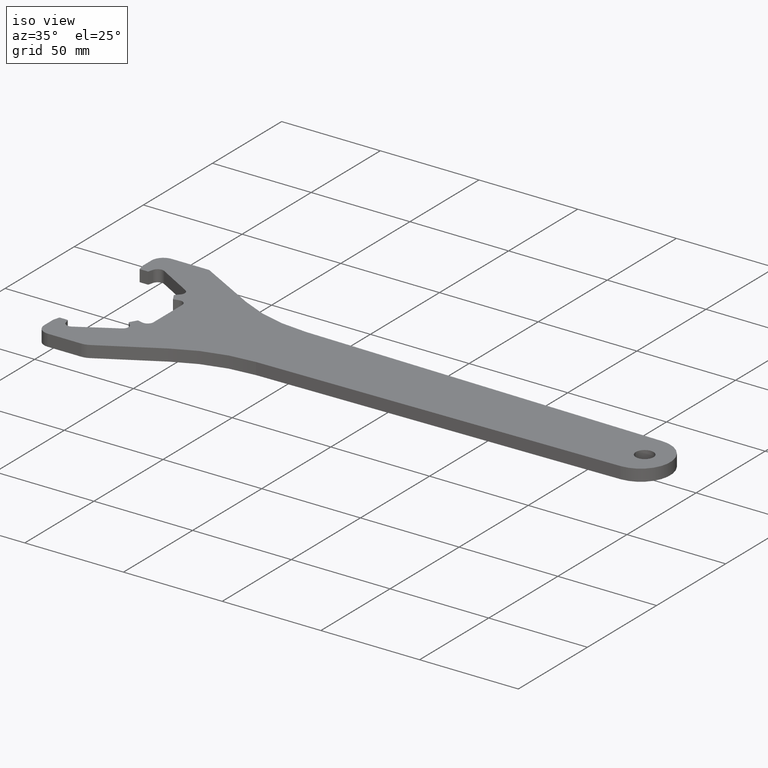
[diagram: clean part render]
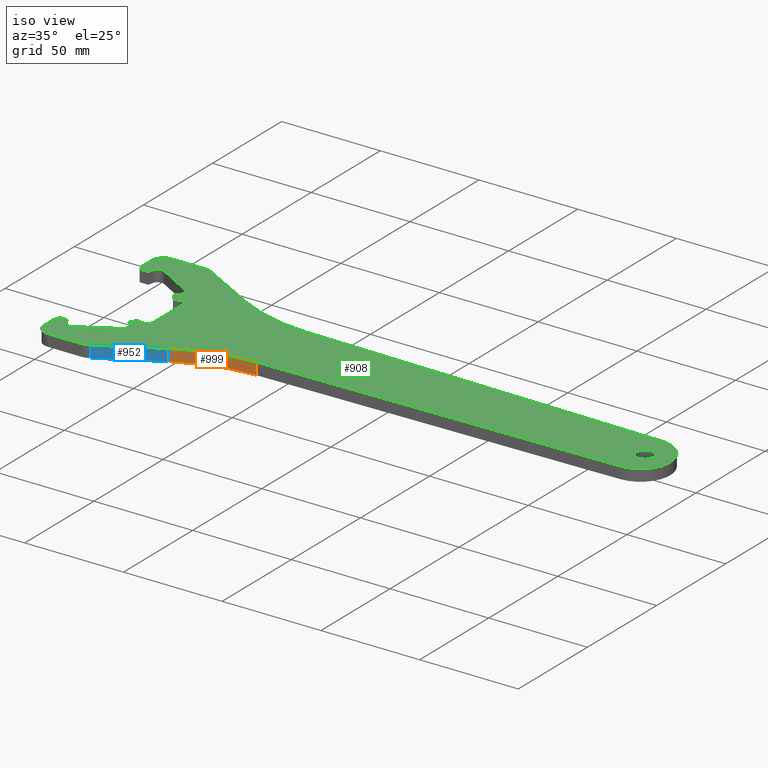
[diagram: same view with three faces highlighted in distinct colors, each labeled with its STEP entity id]
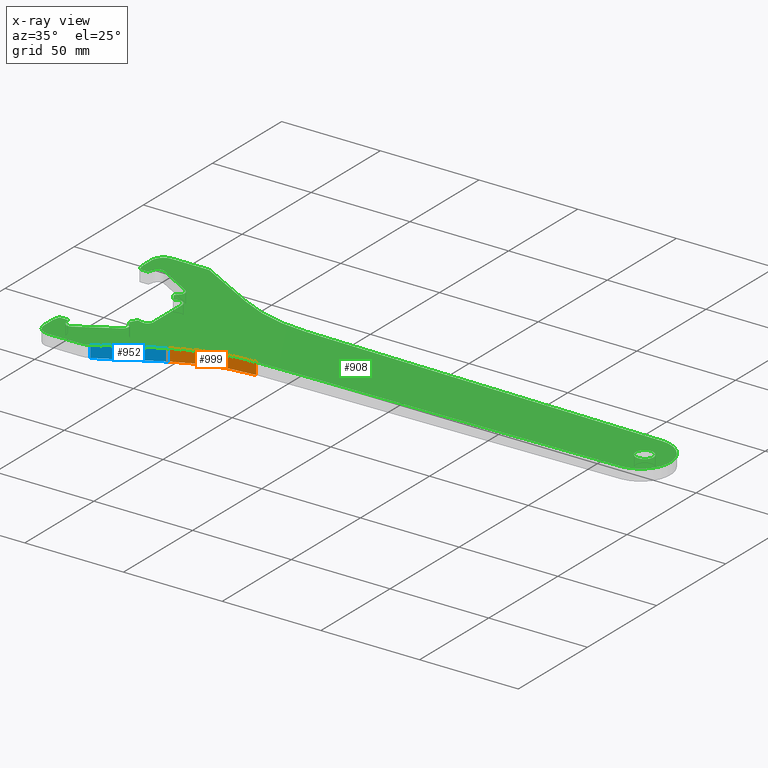
[diagram: x-ray of the same camera — body ghosted, the three highlighted faces saturated]
A machine part, iso view with three faces highlighted in distinct colors.
The next image is the same camera in x-ray (body ghosted, the three faces saturated) — at least one of them is partly hidden behind the body in this view.
Their STEP definitions:

[orange] entity #999 — the highlighted cylindrical surface (partial cylindrical patch) has radius 80 mm, axis along (0, 0, -1).
#2 = CIRCLE ( 'NONE', #1510, 80.00000000000000000 ) ;
#22 = ORIENTED_EDGE ( 'NONE', *, *, #880, .F. ) ;
#58 = VECTOR ( 'NONE', #622, 1000.000000000000000 ) ;
#61 = VECTOR ( 'NONE', #1288, 1000.000000000000000 ) ;
#151 = CARTESIAN_POINT ( 'NONE',  ( 52.35697660996074600, -28.02713574018244500, 3.000000000000000000 ) ) ;
#159 = ORIENTED_EDGE ( 'NONE', *, *, #931, .F. ) ;
#183 = VERTEX_POINT ( 'NONE', #1247 ) ;
#295 = DIRECTION ( 'NONE',  ( 0.0000000000000000000, 0.0000000000000000000, -1.000000000000000000 ) ) ;
#305 = VERTEX_POINT ( 'NONE', #1325 ) ;
#342 = CARTESIAN_POINT ( 'NONE',  ( 91.08415841000000100, -98.02860279499999800, 0.0000000000000000000 ) ) ;
#353 = ORIENTED_EDGE ( 'NONE', *, *, #1140, .T. ) ;
#401 = AXIS2_PLACEMENT_3D ( 'NONE', #1052, #295, #1187 ) ;
#433 = LINE ( 'NONE', #630, #61 ) ;
#463 = DIRECTION ( 'NONE',  ( -1.000000000000000000, 0.0000000000000000000, 0.0000000000000000000 ) ) ;
#622 = DIRECTION ( 'NONE',  ( 0.0000000000000000000, 0.0000000000000000000, -1.000000000000000000 ) ) ;
#623 = EDGE_LOOP ( 'NONE', ( #159, #1277, #353, #22 ) ) ;
#630 = CARTESIAN_POINT ( 'NONE',  ( 89.75082507700001600, -18.03971467699999900, 3.000000000000000000 ) ) ;
#669 = CARTESIAN_POINT ( 'NONE',  ( 52.35697662698923700, -28.02713573086294800, 0.0000000000000000000 ) ) ;
#696 = CYLINDRICAL_SURFACE ( 'NONE', #829, 80.00000000000000000 ) ;
#740 = FACE_OUTER_BOUND ( 'NONE', #623, .T. ) ;
#757 = LINE ( 'NONE', #151, #58 ) ;
#767 = EDGE_CURVE ( 'NONE', #1090, #1199, #757, .T. ) ;
#829 = AXIS2_PLACEMENT_3D ( 'NONE', #1572, #1440, #1316 ) ;
#880 = EDGE_CURVE ( 'NONE', #183, #305, #433, .T. ) ;
#931 = EDGE_CURVE ( 'NONE', #1090, #183, #1583, .T. ) ;
#999 = ADVANCED_FACE ( 'NONE', ( #740 ), #696, .F. ) ;
#1052 = CARTESIAN_POINT ( 'NONE',  ( 91.08415841000000100, -98.02860279499999800, 6.000000000000000000 ) ) ;
#1090 = VERTEX_POINT ( 'NONE', #1212 ) ;
#1140 = EDGE_CURVE ( 'NONE', #1199, #305, #2, .T. ) ;
#1187 = DIRECTION ( 'NONE',  ( -1.000000000000000000, 0.0000000000000000000, 0.0000000000000000000 ) ) ;
#1199 = VERTEX_POINT ( 'NONE', #669 ) ;
#1212 = CARTESIAN_POINT ( 'NONE',  ( 52.35697669664359200, -28.02713572117011200, 6.000000000000000000 ) ) ;
#1231 = DIRECTION ( 'NONE',  ( 0.0000000000000000000, 0.0000000000000000000, -1.000000000000000000 ) ) ;
#1247 = CARTESIAN_POINT ( 'NONE',  ( 89.75082508319594900, -18.03971466491087500, 6.000000000000000000 ) ) ;
#1277 = ORIENTED_EDGE ( 'NONE', *, *, #767, .T. ) ;
#1288 = DIRECTION ( 'NONE',  ( -0.0000000000000000000, -0.0000000000000000000, -1.000000000000000000 ) ) ;
#1316 = DIRECTION ( 'NONE',  ( -1.000000000000000000, 0.0000000000000000000, 0.0000000000000000000 ) ) ;
#1325 = CARTESIAN_POINT ( 'NONE',  ( 89.75082507693063900, -18.03971467700116800, 0.0000000000000000000 ) ) ;
#1440 = DIRECTION ( 'NONE',  ( 0.0000000000000000000, 0.0000000000000000000, -1.000000000000000000 ) ) ;
#1510 = AXIS2_PLACEMENT_3D ( 'NONE', #342, #1231, #463 ) ;
#1572 = CARTESIAN_POINT ( 'NONE',  ( 91.08415841000000100, -98.02860279499999800, 6.000000000000000000 ) ) ;
#1583 = CIRCLE ( 'NONE', #401, 80.00000000000000000 ) ;

[blue] entity #952 — the highlighted planar face has unit normal (0.4841, -0.875, 0).
#46 = CARTESIAN_POINT ( 'NONE',  ( 23.79065301100000000, -43.83099318299999700, 0.0000000000000000000 ) ) ;
#58 = VECTOR ( 'NONE', #622, 1000.000000000000000 ) ;
#72 = CARTESIAN_POINT ( 'NONE',  ( 23.79065300449104100, -43.83099318483032600, 6.000000000000000000 ) ) ;
#110 = VECTOR ( 'NONE', #1389, 1000.000000000000000 ) ;
#151 = CARTESIAN_POINT ( 'NONE',  ( 52.35697660996074600, -28.02713574018244500, 3.000000000000000000 ) ) ;
#189 = VECTOR ( 'NONE', #1269, 1000.000000000000200 ) ;
#198 = DIRECTION ( 'NONE',  ( 0.8750183392145486300, 0.4840897706399228100, 0.0000000000000000000 ) ) ;
#207 = LINE ( 'NONE', #1073, #1501 ) ;
#236 = LINE ( 'NONE', #614, #189 ) ;
#419 = PLANE ( 'NONE',  #637 ) ;
#523 = ORIENTED_EDGE ( 'NONE', *, *, #767, .F. ) ;
#591 = VERTEX_POINT ( 'NONE', #72 ) ;
#614 = CARTESIAN_POINT ( 'NONE',  ( 23.79065301100000000, -43.83099318299999700, 0.0000000000000000000 ) ) ;
#618 = DIRECTION ( 'NONE',  ( 0.4840897720758505800, -0.8750183384201448700, 0.0000000000000000000 ) ) ;
#622 = DIRECTION ( 'NONE',  ( 0.0000000000000000000, 0.0000000000000000000, -1.000000000000000000 ) ) ;
#637 = AXIS2_PLACEMENT_3D ( 'NONE', #46, #618, #1150 ) ;
#659 = ORIENTED_EDGE ( 'NONE', *, *, #731, .T. ) ;
#669 = CARTESIAN_POINT ( 'NONE',  ( 52.35697662698923700, -28.02713573086294800, 0.0000000000000000000 ) ) ;
#731 = EDGE_CURVE ( 'NONE', #591, #1630, #1117, .T. ) ;
#756 = CARTESIAN_POINT ( 'NONE',  ( 23.79065301100000000, -43.83099318299999700, 3.000000000000000000 ) ) ;
#757 = LINE ( 'NONE', #151, #58 ) ;
#767 = EDGE_CURVE ( 'NONE', #1090, #1199, #757, .T. ) ;
#836 = EDGE_CURVE ( 'NONE', #1630, #1199, #236, .T. ) ;
#860 = EDGE_LOOP ( 'NONE', ( #1312, #659, #1535, #523 ) ) ;
#952 = ADVANCED_FACE ( 'NONE', ( #1253 ), #419, .T. ) ;
#1010 = EDGE_CURVE ( 'NONE', #591, #1090, #207, .T. ) ;
#1073 = CARTESIAN_POINT ( 'NONE',  ( 23.79065304274000100, -43.83099316189905200, 6.000000000000000000 ) ) ;
#1075 = CARTESIAN_POINT ( 'NONE',  ( 23.79065301098477600, -43.83099318300841000, -1.084202172485504400E-016 ) ) ;
#1090 = VERTEX_POINT ( 'NONE', #1212 ) ;
#1117 = LINE ( 'NONE', #756, #110 ) ;
#1150 = DIRECTION ( 'NONE',  ( 0.8750183384201447600, 0.4840897720758505200, 0.0000000000000000000 ) ) ;
#1199 = VERTEX_POINT ( 'NONE', #669 ) ;
#1212 = CARTESIAN_POINT ( 'NONE',  ( 52.35697669664359200, -28.02713572117011200, 6.000000000000000000 ) ) ;
#1253 = FACE_OUTER_BOUND ( 'NONE', #860, .T. ) ;
#1269 = DIRECTION ( 'NONE',  ( 0.8750183384201448700, 0.4840897720758505200, 0.0000000000000000000 ) ) ;
#1312 = ORIENTED_EDGE ( 'NONE', *, *, #1010, .F. ) ;
#1389 = DIRECTION ( 'NONE',  ( -0.0000000000000000000, -0.0000000000000000000, -1.000000000000000000 ) ) ;
#1501 = VECTOR ( 'NONE', #198, 1000.000000000000100 ) ;
#1535 = ORIENTED_EDGE ( 'NONE', *, *, #836, .T. ) ;
#1630 = VERTEX_POINT ( 'NONE', #1075 ) ;

[green] entity #908 — the highlighted planar face has unit normal (0, 0, 1).
#6 = EDGE_CURVE ( 'NONE', #183, #1409, #1037, .T. ) ;
#8 = DIRECTION ( 'NONE',  ( -0.0000000000000000000, -0.0000000000000000000, 1.000000000000000000 ) ) ;
#11 = DIRECTION ( 'NONE',  ( -0.0000000000000000000, -0.0000000000000000000, 1.000000000000000000 ) ) ;
#27 = CARTESIAN_POINT ( 'NONE',  ( 52.35697671062000300, 28.02713574238144300, 6.000000000000000000 ) ) ;
#31 = VERTEX_POINT ( 'NONE', #1604 ) ;
#34 = AXIS2_PLACEMENT_3D ( 'NONE', #1428, #655, #1560 ) ;
#43 = AXIS2_PLACEMENT_3D ( 'NONE', #1571, #805, #56 ) ;
#45 = ORIENTED_EDGE ( 'NONE', *, *, #931, .T. ) ;
#53 = EDGE_CURVE ( 'NONE', #607, #1038, #1636, .T. ) ;
#56 = DIRECTION ( 'NONE',  ( -1.000000000000000000, 8.673617379884026000E-015, 0.0000000000000000000 ) ) ;
#62 = CARTESIAN_POINT ( 'NONE',  ( 2.150111759699997500, 28.99999999196561300, 6.000000000000000000 ) ) ;
#72 = CARTESIAN_POINT ( 'NONE',  ( 23.79065300449104100, -43.83099318483032600, 6.000000000000000000 ) ) ;
#73 = DIRECTION ( 'NONE',  ( -0.0000000000000000000, -0.0000000000000000000, 1.000000000000000000 ) ) ;
#76 = CARTESIAN_POINT ( 'NONE',  ( 25.29435772358513600, 22.92343197572925100, 6.000000000000000000 ) ) ;
#79 = ORIENTED_EDGE ( 'NONE', *, *, #1205, .T. ) ;
#80 = ORIENTED_EDGE ( 'NONE', *, *, #155, .T. ) ;
#81 = VERTEX_POINT ( 'NONE', #712 ) ;
#82 = LINE ( 'NONE', #446, #370 ) ;
#83 = VECTOR ( 'NONE', #1069, 999.9999999999998900 ) ;
#84 = CARTESIAN_POINT ( 'NONE',  ( -2.153400328100003100, 28.99999999196562000, 6.000000000000000000 ) ) ;
#85 = DIRECTION ( 'NONE',  ( 0.9659258263774709300, 0.2588190447725977100, 0.0000000000000000000 ) ) ;
#88 = LINE ( 'NONE', #1611, #1291 ) ;
#103 = ORIENTED_EDGE ( 'NONE', *, *, #868, .T. ) ;
#111 = VECTOR ( 'NONE', #903, 1000.000000000000000 ) ;
#117 = AXIS2_PLACEMENT_3D ( 'NONE', #1329, #568, #1459 ) ;
#133 = CARTESIAN_POINT ( 'NONE',  ( 24.19259956670551000, -16.09529459306513000, 6.000000000000000000 ) ) ;
#136 = ORIENTED_EDGE ( 'NONE', *, *, #1255, .T. ) ;
#148 = ORIENTED_EDGE ( 'NONE', *, *, #1436, .T. ) ;
#154 = CARTESIAN_POINT ( 'NONE',  ( -3.016635672999999200, 0.0000000000000000000, 6.000000000000000000 ) ) ;
#155 = EDGE_CURVE ( 'NONE', #780, #1144, #842, .T. ) ;
#158 = ORIENTED_EDGE ( 'NONE', *, *, #1387, .T. ) ;
#161 = CARTESIAN_POINT ( 'NONE',  ( 272.2333643259391900, -14.99791652477024000, 6.000000000000000000 ) ) ;
#162 = CARTESIAN_POINT ( 'NONE',  ( 24.53900972800000300, 16.29529459299999800, 6.000000000000000000 ) ) ;
#166 = VECTOR ( 'NONE', #1259, 1000.000000000000200 ) ;
#168 = CARTESIAN_POINT ( 'NONE',  ( 271.9833643269999500, 0.0000000000000000000, 6.000000000000000000 ) ) ;
#169 = AXIS2_PLACEMENT_3D ( 'NONE', #750, #8, #892 ) ;
#172 = DIRECTION ( 'NONE',  ( 0.0000000000000000000, 0.0000000000000000000, 1.000000000000000000 ) ) ;
#174 = VECTOR ( 'NONE', #180, 1000.000000000000200 ) ;
#176 = CARTESIAN_POINT ( 'NONE',  ( -2.230597930637838300, -29.30046065461322500, 6.000000000000000000 ) ) ;
#179 = EDGE_CURVE ( 'NONE', #1513, #1142, #504, .T. ) ;
#180 = DIRECTION ( 'NONE',  ( 0.5000000103813669900, -0.8660253977907534900, 0.0000000000000000000 ) ) ;
#183 = VERTEX_POINT ( 'NONE', #1247 ) ;
#185 = DIRECTION ( 'NONE',  ( 0.0000000000000000000, 0.0000000000000000000, -1.000000000000000000 ) ) ;
#188 = CIRCLE ( 'NONE', #34, 3.000000000000000900 ) ;
#196 = CARTESIAN_POINT ( 'NONE',  ( 28.72244947558000300, -13.31577162136946100, 6.000000000000000000 ) ) ;
#198 = DIRECTION ( 'NONE',  ( 0.8750183392145486300, 0.4840897706399228100, 0.0000000000000000000 ) ) ;
#199 = DIRECTION ( 'NONE',  ( -0.0000000000000000000, -0.0000000000000000000, 1.000000000000000000 ) ) ;
#200 = CARTESIAN_POINT ( 'NONE',  ( 26.48571828048000400, 12.71644130477575500, 6.000000000000000000 ) ) ;
#201 = CARTESIAN_POINT ( 'NONE',  ( 273.9833643297888000, 0.0000000000000000000, 5.999999999999998200 ) ) ;
#205 = VERTEX_POINT ( 'NONE', #76 ) ;
#207 = LINE ( 'NONE', #1073, #1501 ) ;
#208 = CARTESIAN_POINT ( 'NONE',  ( 25.89369838023853600, 18.18228110780623700, 6.000000000000000000 ) ) ;
#217 = VERTEX_POINT ( 'NONE', #1094 ) ;
#218 = ORIENTED_EDGE ( 'NONE', *, *, #379, .T. ) ;
#222 = CARTESIAN_POINT ( 'NONE',  ( 19.91793483553876200, -44.83084647499999400, 6.000000000000000000 ) ) ;
#225 = CARTESIAN_POINT ( 'NONE',  ( 23.79435772700000500, 20.32535578000000200, 6.000000000000000000 ) ) ;
#228 = VECTOR ( 'NONE', #1243, 1000.000000000000000 ) ;
#230 = VERTEX_POINT ( 'NONE', #826 ) ;
#231 = VECTOR ( 'NONE', #315, 1000.000000000000000 ) ;
#238 = CARTESIAN_POINT ( 'NONE',  ( 273.9833643297888000, 0.0000000000000000000, 5.999999999999998200 ) ) ;
#243 = ORIENTED_EDGE ( 'NONE', *, *, #708, .T. ) ;
#247 = EDGE_CURVE ( 'NONE', #1252, #1513, #471, .T. ) ;
#265 = LINE ( 'NONE', #1240, #1266 ) ;
#266 = ORIENTED_EDGE ( 'NONE', *, *, #982, .F. ) ;
#273 = EDGE_CURVE ( 'NONE', #1142, #571, #1061, .T. ) ;
#276 = ORIENTED_EDGE ( 'NONE', *, *, #939, .T. ) ;
#278 = CARTESIAN_POINT ( 'NONE',  ( 26.38219063399999700, -13.10281161700000000, 6.000000000000000000 ) ) ;
#285 = VECTOR ( 'NONE', #768, 1000.000000000000000 ) ;
#287 = DIRECTION ( 'NONE',  ( -1.000000000000000000, 0.0000000000000000000, 0.0000000000000000000 ) ) ;
#288 = DIRECTION ( 'NONE',  ( -1.000000000000000000, 0.0000000000000000000, 0.0000000000000000000 ) ) ;
#295 = DIRECTION ( 'NONE',  ( 0.0000000000000000000, 0.0000000000000000000, -1.000000000000000000 ) ) ;
#297 = CARTESIAN_POINT ( 'NONE',  ( 24.53900972800000300, -16.29529459299999800, 6.000000000000000000 ) ) ;
#315 = DIRECTION ( 'NONE',  ( -0.0000000000000000000, -1.000000000000000000, -0.0000000000000000000 ) ) ;
#316 = CIRCLE ( 'NONE', #1393, 3.000000000000000900 ) ;
#318 = DIRECTION ( 'NONE',  ( 1.000000000000000000, 0.0000000000000000000, 0.0000000000000000000 ) ) ;
#320 = CARTESIAN_POINT ( 'NONE',  ( 24.53900972800000300, 16.29529459299999800, 6.000000000000000000 ) ) ;
#323 = CARTESIAN_POINT ( 'NONE',  ( 32.49890655805000300, 10.41799413500000100, 6.000000000000000000 ) ) ;
#327 = CARTESIAN_POINT ( 'NONE',  ( 269.4833643297678200, 5.510910596188847800E-016, 5.999999999999998200 ) ) ;
#336 = ORIENTED_EDGE ( 'NONE', *, *, #682, .T. ) ;
#344 = DIRECTION ( 'NONE',  ( -1.000000000000000000, 0.0000000000000000000, 0.0000000000000000000 ) ) ;
#345 = CARTESIAN_POINT ( 'NONE',  ( 32.49890649610000500, 0.0000000000000000000, 6.000000000000000000 ) ) ;
#350 = LINE ( 'NONE', #200, #980 ) ;
#351 = VERTEX_POINT ( 'NONE', #1216 ) ;
#354 = ORIENTED_EDGE ( 'NONE', *, *, #1129, .T. ) ;
#356 = DIRECTION ( 'NONE',  ( 1.000000000000000000, 0.0000000000000000000, 0.0000000000000000000 ) ) ;
#358 = EDGE_LOOP ( 'NONE', ( #148, #218, #354, #1377, #158, #136, #79, #426, #1062, #1369, #276, #384, #904, #336, #1354, #866, #610, #1520, #747, #1424, #1469, #1179, #499, #103, #582, #862, #1238, #266, #1383, #542, #1029, #1635, #1366, #450, #770, #1164, #601, #845, #80, #243, #1016, #45, #1223 ) ) ;
#359 = CIRCLE ( 'NONE', #578, 2.999999999999999100 ) ;
#369 = EDGE_LOOP ( 'NONE', ( #489, #702 ) ) ;
#370 = VECTOR ( 'NONE', #823, 1000.000000000000200 ) ;
#379 = EDGE_CURVE ( 'NONE', #989, #1505, #494, .T. ) ;
#384 = ORIENTED_EDGE ( 'NONE', *, *, #1123, .T. ) ;
#385 = VERTEX_POINT ( 'NONE', #1374 ) ;
#394 = CARTESIAN_POINT ( 'NONE',  ( 2.983364326999999900, -44.83084647499999400, 6.000000000000000000 ) ) ;
#396 = DIRECTION ( 'NONE',  ( -1.000000000000000000, 1.301042606982602000E-014, 0.0000000000000000000 ) ) ;
#401 = AXIS2_PLACEMENT_3D ( 'NONE', #1052, #295, #1187 ) ;
#412 = DIRECTION ( 'NONE',  ( -0.8660254019696164200, -0.5000000031433642400, 0.0000000000000000000 ) ) ;
#413 = VERTEX_POINT ( 'NONE', #133 ) ;
#417 = VERTEX_POINT ( 'NONE', #501 ) ;
#420 = DIRECTION ( 'NONE',  ( -1.000000000000000000, -8.673617379884087500E-015, 0.0000000000000000000 ) ) ;
#426 = ORIENTED_EDGE ( 'NONE', *, *, #667, .T. ) ;
#427 = CIRCLE ( 'NONE', #1466, 6.000000000000000000 ) ;
#434 = CARTESIAN_POINT ( 'NONE',  ( 23.79435772700000500, -20.32535578000000200, 6.000000000000000000 ) ) ;
#437 = CARTESIAN_POINT ( 'NONE',  ( 2.828881617458831600, 31.53320359806258800, 6.000000000000000000 ) ) ;
#439 = CARTESIAN_POINT ( 'NONE',  ( 2.150111818400002300, 28.99999998928748500, 6.000000000000000000 ) ) ;
#445 = DIRECTION ( 'NONE',  ( -1.000000000000000000, 8.673617379884087500E-015, 0.0000000000000000000 ) ) ;
#446 = CARTESIAN_POINT ( 'NONE',  ( -2.230597965339999000, -29.30046062612419500, 6.000000000000000000 ) ) ;
#450 = ORIENTED_EDGE ( 'NONE', *, *, #769, .T. ) ;
#457 = CIRCLE ( 'NONE', #1286, 0.4000000000000004100 ) ;
#458 = CARTESIAN_POINT ( 'NONE',  ( 91.08415841000000100, 98.02860279499999800, 6.000000000000000000 ) ) ;
#466 = DIRECTION ( 'NONE',  ( -0.0000000000000000000, -1.000000000000000000, -0.0000000000000000000 ) ) ;
#470 = DIRECTION ( 'NONE',  ( 1.000000000000000000, 0.0000000000000000000, 0.0000000000000000000 ) ) ;
#471 = LINE ( 'NONE', #345, #1481 ) ;
#472 = VERTEX_POINT ( 'NONE', #1141 ) ;
#481 = EDGE_CURVE ( 'NONE', #1328, #1498, #457, .T. ) ;
#485 = VERTEX_POINT ( 'NONE', #1385 ) ;
#486 = EDGE_CURVE ( 'NONE', #729, #81, #1418, .T. ) ;
#489 = ORIENTED_EDGE ( 'NONE', *, *, #525, .F. ) ;
#492 = AXIS2_PLACEMENT_3D ( 'NONE', #278, #1163, #396 ) ;
#493 = VECTOR ( 'NONE', #1430, 1000.000000000000000 ) ;
#494 = LINE ( 'NONE', #1121, #166 ) ;
#498 = LINE ( 'NONE', #788, #174 ) ;
#499 = ORIENTED_EDGE ( 'NONE', *, *, #273, .T. ) ;
#501 = CARTESIAN_POINT ( 'NONE',  ( 7.226659058118351600, 33.35482270770552300, 6.000000000000000000 ) ) ;
#504 = CIRCLE ( 'NONE', #117, 2.999999999999999100 ) ;
#510 = VECTOR ( 'NONE', #784, 1000.000000000000100 ) ;
#524 = CIRCLE ( 'NONE', #973, 0.4000000000000010200 ) ;
#525 = EDGE_CURVE ( 'NONE', #1038, #607, #1046, .T. ) ;
#540 = CARTESIAN_POINT ( 'NONE',  ( 2.229551196909103500, -29.29647237593651400, 6.000000000000000000 ) ) ;
#542 = ORIENTED_EDGE ( 'NONE', *, *, #955, .T. ) ;
#555 = DIRECTION ( 'NONE',  ( -1.000000000000000000, 0.0000000000000000000, 0.0000000000000000000 ) ) ;
#558 = DIRECTION ( 'NONE',  ( -0.0000000000000000000, -0.0000000000000000000, 1.000000000000000000 ) ) ;
#565 = LINE ( 'NONE', #785, #1214 ) ;
#568 = DIRECTION ( 'NONE',  ( 0.0000000000000000000, 0.0000000000000000000, -1.000000000000000000 ) ) ;
#571 = VERTEX_POINT ( 'NONE', #816 ) ;
#573 = DIRECTION ( 'NONE',  ( -1.000000000000000000, 0.0000000000000000000, 0.0000000000000000000 ) ) ;
#578 = AXIS2_PLACEMENT_3D ( 'NONE', #225, #1103, #344 ) ;
#581 = LINE ( 'NONE', #1076, #231 ) ;
#582 = ORIENTED_EDGE ( 'NONE', *, *, #1489, .F. ) ;
#587 = VECTOR ( 'NONE', #1174, 1000.000000000000100 ) ;
#591 = VERTEX_POINT ( 'NONE', #72 ) ;
#597 = AXIS2_PLACEMENT_3D ( 'NONE', #238, #1116, #356 ) ;
#601 = ORIENTED_EDGE ( 'NONE', *, *, #871, .T. ) ;
#602 = EDGE_CURVE ( 'NONE', #716, #1101, #613, .T. ) ;
#603 = LINE ( 'NONE', #27, #285 ) ;
#604 = VERTEX_POINT ( 'NONE', #681 ) ;
#605 = EDGE_CURVE ( 'NONE', #351, #729, #926, .T. ) ;
#607 = VERTEX_POINT ( 'NONE', #327 ) ;
#610 = ORIENTED_EDGE ( 'NONE', *, *, #1516, .T. ) ;
#613 = CIRCLE ( 'NONE', #670, 0.3999999999999975800 ) ;
#634 = CARTESIAN_POINT ( 'NONE',  ( 2.828881687640000900, -31.53320364098978600, 6.000000000000000000 ) ) ;
#638 = DIRECTION ( 'NONE',  ( 0.0000000000000000000, 0.0000000000000000000, -1.000000000000000000 ) ) ;
#640 = CARTESIAN_POINT ( 'NONE',  ( -3.016635672999999200, -44.83084647499999400, 6.000000000000000000 ) ) ;
#655 = DIRECTION ( 'NONE',  ( 0.0000000000000000000, 0.0000000000000000000, -1.000000000000000000 ) ) ;
#667 = EDGE_CURVE ( 'NONE', #1582, #1130, #890, .T. ) ;
#670 = AXIS2_PLACEMENT_3D ( 'NONE', #162, #1033, #287 ) ;
#681 = CARTESIAN_POINT ( 'NONE',  ( 2.983364327615311200, 44.83084647499999400, 6.000000000000000000 ) ) ;
#682 = EDGE_CURVE ( 'NONE', #1050, #485, #1562, .T. ) ;
#687 = DIRECTION ( 'NONE',  ( -0.0000000000000000000, -0.0000000000000000000, 1.000000000000000000 ) ) ;
#689 = CARTESIAN_POINT ( 'NONE',  ( 7.226659136600002100, 33.35482268840559100, 6.000000000000000000 ) ) ;
#690 = VECTOR ( 'NONE', #1402, 1000.000000000000200 ) ;
#702 = ORIENTED_EDGE ( 'NONE', *, *, #53, .F. ) ;
#707 = EDGE_CURVE ( 'NONE', #1071, #351, #188, .T. ) ;
#708 = EDGE_CURVE ( 'NONE', #1144, #591, #1523, .T. ) ;
#712 = CARTESIAN_POINT ( 'NONE',  ( 1.843180906000000600, -28.99999999464374100, 6.000000000000000000 ) ) ;
#713 = AXIS2_PLACEMENT_3D ( 'NONE', #458, #1340, #573 ) ;
#716 = VERTEX_POINT ( 'NONE', #790 ) ;
#729 = VERTEX_POINT ( 'NONE', #540 ) ;
#739 = VECTOR ( 'NONE', #1581, 1000.000000000000000 ) ;
#747 = ORIENTED_EDGE ( 'NONE', *, *, #1631, .T. ) ;
#750 = CARTESIAN_POINT ( 'NONE',  ( 19.91793483400000000, -36.83084647499999400, 6.000000000000000000 ) ) ;
#752 = CARTESIAN_POINT ( 'NONE',  ( -1.843180906000000400, -29.39999999999999900, 6.000000000000000000 ) ) ;
#759 = LINE ( 'NONE', #154, #111 ) ;
#768 = DIRECTION ( 'NONE',  ( -0.8750183393551158600, 0.4840897703858401100, 0.0000000000000000000 ) ) ;
#769 = EDGE_CURVE ( 'NONE', #81, #1328, #1610, .T. ) ;
#770 = ORIENTED_EDGE ( 'NONE', *, *, #481, .T. ) ;
#775 = CIRCLE ( 'NONE', #1035, 6.000000000000000000 ) ;
#780 = VERTEX_POINT ( 'NONE', #394 ) ;
#781 = CARTESIAN_POINT ( 'NONE',  ( 25.11419001950000100, -14.49905310500000000, 6.000000000000000000 ) ) ;
#784 = DIRECTION ( 'NONE',  ( -0.7143582298892988700, -0.6997801936247035600, 0.0000000000000000000 ) ) ;
#785 = CARTESIAN_POINT ( 'NONE',  ( 25.29435773036000200, -22.92343195422212400, 6.000000000000000000 ) ) ;
#788 = CARTESIAN_POINT ( 'NONE',  ( 24.19259957818000500, 16.09529459323754000, 6.000000000000000000 ) ) ;
#790 = CARTESIAN_POINT ( 'NONE',  ( 24.13900972800000800, 16.29529459299999800, 6.000000000000000000 ) ) ;
#791 = CARTESIAN_POINT ( 'NONE',  ( 25.07639801900000300, -17.38165952649999800, 6.000000000000000000 ) ) ;
#794 = VERTEX_POINT ( 'NONE', #1507 ) ;
#798 = CARTESIAN_POINT ( 'NONE',  ( -3.016635673000000600, -32.35979765923500700, 6.000000000000000000 ) ) ;
#802 = CIRCLE ( 'NONE', #492, 0.4000000000000010200 ) ;
#805 = DIRECTION ( 'NONE',  ( -0.0000000000000000000, -0.0000000000000000000, 1.000000000000000000 ) ) ;
#816 = CARTESIAN_POINT ( 'NONE',  ( 26.48571825071954700, -12.71644129146587200, 6.000000000000000000 ) ) ;
#820 = CARTESIAN_POINT ( 'NONE',  ( 26.38219063399999700, 13.10281161700000000, 6.000000000000000000 ) ) ;
#823 = DIRECTION ( 'NONE',  ( -0.2488483265271458900, -0.9685424670011320000, 0.0000000000000000000 ) ) ;
#826 = CARTESIAN_POINT ( 'NONE',  ( -3.016635672999999700, 38.83084647499998700, 6.000000000000000000 ) ) ;
#830 = CARTESIAN_POINT ( 'NONE',  ( 28.72244948395049500, 13.31577161864036700, 6.000000000000000000 ) ) ;
#840 = VERTEX_POINT ( 'NONE', #1143 ) ;
#842 = LINE ( 'NONE', #857, #228 ) ;
#845 = ORIENTED_EDGE ( 'NONE', *, *, #1057, .T. ) ;
#857 = CARTESIAN_POINT ( 'NONE',  ( 142.8533643269999800, -44.83084647499999400, 6.000000000000000000 ) ) ;
#862 = ORIENTED_EDGE ( 'NONE', *, *, #966, .T. ) ;
#866 = ORIENTED_EDGE ( 'NONE', *, *, #602, .T. ) ;
#868 = EDGE_CURVE ( 'NONE', #571, #385, #802, .T. ) ;
#869 = CIRCLE ( 'NONE', #1313, 0.3999999999999975800 ) ;
#871 = EDGE_CURVE ( 'NONE', #1569, #1039, #759, .T. ) ;
#875 = LINE ( 'NONE', #781, #1508 ) ;
#876 = VERTEX_POINT ( 'NONE', #1536 ) ;
#885 = AXIS2_PLACEMENT_3D ( 'NONE', #1324, #558, #1449 ) ;
#890 = LINE ( 'NONE', #1301, #1195 ) ;
#892 = DIRECTION ( 'NONE',  ( -1.000000000000000000, -1.734723475976807900E-015, 0.0000000000000000000 ) ) ;
#895 = DIRECTION ( 'NONE',  ( -1.000000000000000000, -1.734723475976805200E-014, 0.0000000000000000000 ) ) ;
#903 = DIRECTION ( 'NONE',  ( -0.0000000000000000000, -1.000000000000000000, -0.0000000000000000000 ) ) ;
#904 = ORIENTED_EDGE ( 'NONE', *, *, #1321, .T. ) ;
#908 = ADVANCED_FACE ( 'NONE', ( #1628, #1289 ), #916, .T. ) ;
#909 = CARTESIAN_POINT ( 'NONE',  ( 25.89369846720001100, 18.18228113917791300, 6.000000000000000000 ) ) ;
#911 = CIRCLE ( 'NONE', #1014, 14.99999999999995700 ) ;
#916 = PLANE ( 'NONE',  #1493 ) ;
#925 = AXIS2_PLACEMENT_3D ( 'NONE', #1413, #638, #1544 ) ;
#926 = LINE ( 'NONE', #634, #587 ) ;
#928 = CARTESIAN_POINT ( 'NONE',  ( 5.726659042000000500, 30.75674647899999700, 6.000000000000000000 ) ) ;
#930 = VERTEX_POINT ( 'NONE', #1303 ) ;
#931 = EDGE_CURVE ( 'NONE', #1090, #183, #1583, .T. ) ;
#939 = EDGE_CURVE ( 'NONE', #1013, #417, #316, .T. ) ;
#940 = CARTESIAN_POINT ( 'NONE',  ( 2.983364327000000300, -38.83084647499998700, 6.000000000000000000 ) ) ;
#948 = CARTESIAN_POINT ( 'NONE',  ( 24.19259957237844500, 16.09529459348519600, 6.000000000000000000 ) ) ;
#954 = DIRECTION ( 'NONE',  ( -1.000000000000000000, 0.0000000000000000000, 0.0000000000000000000 ) ) ;
#955 = EDGE_CURVE ( 'NONE', #472, #1071, #565, .T. ) ;
#966 = EDGE_CURVE ( 'NONE', #413, #876, #869, .T. ) ;
#973 = AXIS2_PLACEMENT_3D ( 'NONE', #820, #73, #954 ) ;
#980 = VECTOR ( 'NONE', #85, 1000.000000000000000 ) ;
#982 = EDGE_CURVE ( 'NONE', #217, #31, #1502, .T. ) ;
#989 = VERTEX_POINT ( 'NONE', #1310 ) ;
#1010 = EDGE_CURVE ( 'NONE', #591, #1090, #207, .T. ) ;
#1013 = VERTEX_POINT ( 'NONE', #437 ) ;
#1014 = AXIS2_PLACEMENT_3D ( 'NONE', #168, #1041, #288 ) ;
#1016 = ORIENTED_EDGE ( 'NONE', *, *, #1010, .T. ) ;
#1024 = EDGE_CURVE ( 'NONE', #485, #716, #1167, .T. ) ;
#1029 = ORIENTED_EDGE ( 'NONE', *, *, #707, .T. ) ;
#1031 = EDGE_CURVE ( 'NONE', #794, #930, #524, .T. ) ;
#1033 = DIRECTION ( 'NONE',  ( -0.0000000000000000000, -0.0000000000000000000, 1.000000000000000000 ) ) ;
#1035 = AXIS2_PLACEMENT_3D ( 'NONE', #940, #199, #1074 ) ;
#1037 = LINE ( 'NONE', #1285, #690 ) ;
#1038 = VERTEX_POINT ( 'NONE', #1080 ) ;
#1039 = VERTEX_POINT ( 'NONE', #1326 ) ;
#1041 = DIRECTION ( 'NONE',  ( -0.0000000000000000000, -0.0000000000000000000, 1.000000000000000000 ) ) ;
#1044 = DIRECTION ( 'NONE',  ( 1.000000000000000000, 0.0000000000000000000, 0.0000000000000000000 ) ) ;
#1046 = CIRCLE ( 'NONE', #1607, 4.500000000020987700 ) ;
#1050 = VERTEX_POINT ( 'NONE', #208 ) ;
#1052 = CARTESIAN_POINT ( 'NONE',  ( 91.08415841000000100, -98.02860279499999800, 6.000000000000000000 ) ) ;
#1053 = CIRCLE ( 'NONE', #1270, 2.999999999999999100 ) ;
#1055 = DIRECTION ( 'NONE',  ( -1.000000000000000000, 0.0000000000000000000, 0.0000000000000000000 ) ) ;
#1057 = EDGE_CURVE ( 'NONE', #1039, #780, #775, .T. ) ;
#1059 = EDGE_CURVE ( 'NONE', #876, #31, #1412, .T. ) ;
#1061 = LINE ( 'NONE', #196, #83 ) ;
#1062 = ORIENTED_EDGE ( 'NONE', *, *, #1161, .T. ) ;
#1069 = DIRECTION ( 'NONE',  ( -0.9659258263774702600, 0.2588190447726004800, 0.0000000000000000000 ) ) ;
#1071 = VERTEX_POINT ( 'NONE', #1086 ) ;
#1072 = EDGE_CURVE ( 'NONE', #1112, #1013, #1093, .T. ) ;
#1073 = CARTESIAN_POINT ( 'NONE',  ( 23.79065304274000100, -43.83099316189905200, 6.000000000000000000 ) ) ;
#1074 = DIRECTION ( 'NONE',  ( -1.000000000000000000, 0.0000000000000000000, 0.0000000000000000000 ) ) ;
#1076 = CARTESIAN_POINT ( 'NONE',  ( -3.016635672999999200, 0.0000000000000000000, 6.000000000000000000 ) ) ;
#1078 = DIRECTION ( 'NONE',  ( 0.0000000000000000000, 0.0000000000000000000, 1.000000000000000000 ) ) ;
#1080 = CARTESIAN_POINT ( 'NONE',  ( 278.4833643298097700, 0.0000000000000000000, 5.999999999999998200 ) ) ;
#1086 = CARTESIAN_POINT ( 'NONE',  ( 7.226659057840865200, -33.35482270754239000, 6.000000000000000000 ) ) ;
#1090 = VERTEX_POINT ( 'NONE', #1212 ) ;
#1093 = LINE ( 'NONE', #439, #739 ) ;
#1094 = CARTESIAN_POINT ( 'NONE',  ( 25.89369839926561300, -18.18228118026019000, 6.000000000000000000 ) ) ;
#1097 = CARTESIAN_POINT ( 'NONE',  ( 21.98336431080002400, 44.83084647499999400, 6.000000000000000000 ) ) ;
#1101 = VERTEX_POINT ( 'NONE', #948 ) ;
#1103 = DIRECTION ( 'NONE',  ( 0.0000000000000000000, 0.0000000000000000000, -1.000000000000000000 ) ) ;
#1112 = VERTEX_POINT ( 'NONE', #62 ) ;
#1113 = EDGE_CURVE ( 'NONE', #1498, #1569, #82, .T. ) ;
#1116 = DIRECTION ( 'NONE',  ( 0.0000000000000000000, 0.0000000000000000000, 1.000000000000000000 ) ) ;
#1121 = CARTESIAN_POINT ( 'NONE',  ( 272.2333644370600000, 14.99791652569996900, 6.000000000000000000 ) ) ;
#1123 = EDGE_CURVE ( 'NONE', #417, #205, #1131, .T. ) ;
#1129 = EDGE_CURVE ( 'NONE', #1505, #840, #1302, .T. ) ;
#1130 = VERTEX_POINT ( 'NONE', #84 ) ;
#1131 = LINE ( 'NONE', #689, #1339 ) ;
#1141 = CARTESIAN_POINT ( 'NONE',  ( 25.29435772381842200, -22.92343197559455300, 6.000000000000000000 ) ) ;
#1142 = VERTEX_POINT ( 'NONE', #1467 ) ;
#1143 = CARTESIAN_POINT ( 'NONE',  ( 52.35697672432651500, 28.02713570595620500, 6.000000000000000000 ) ) ;
#1144 = VERTEX_POINT ( 'NONE', #222 ) ;
#1156 = VERTEX_POINT ( 'NONE', #1097 ) ;
#1161 = EDGE_CURVE ( 'NONE', #1130, #1112, #265, .T. ) ;
#1163 = DIRECTION ( 'NONE',  ( -0.0000000000000000000, -0.0000000000000000000, 1.000000000000000000 ) ) ;
#1164 = ORIENTED_EDGE ( 'NONE', *, *, #1113, .T. ) ;
#1167 = CIRCLE ( 'NONE', #1633, 0.3999999999999975800 ) ;
#1174 = DIRECTION ( 'NONE',  ( -0.2588191224792941700, 0.9659258055560210300, 0.0000000000000000000 ) ) ;
#1179 = ORIENTED_EDGE ( 'NONE', *, *, #179, .T. ) ;
#1180 = DIRECTION ( 'NONE',  ( 0.2488483376990337500, -0.9685424641307306400, 0.0000000000000000000 ) ) ;
#1187 = DIRECTION ( 'NONE',  ( -1.000000000000000000, 0.0000000000000000000, 0.0000000000000000000 ) ) ;
#1188 = DIRECTION ( 'NONE',  ( -0.0000000000000000000, -0.0000000000000000000, 1.000000000000000000 ) ) ;
#1195 = VECTOR ( 'NONE', #1180, 1000.000000000000000 ) ;
#1205 = EDGE_CURVE ( 'NONE', #230, #1582, #581, .T. ) ;
#1211 = DIRECTION ( 'NONE',  ( -0.0000000000000000000, -0.0000000000000000000, 1.000000000000000000 ) ) ;
#1212 = CARTESIAN_POINT ( 'NONE',  ( 52.35697669664359200, -28.02713572117011200, 6.000000000000000000 ) ) ;
#1214 = VECTOR ( 'NONE', #412, 1000.000000000000100 ) ;
#1216 = CARTESIAN_POINT ( 'NONE',  ( 2.828881648914094400, -31.53320371604922200, 6.000000000000000000 ) ) ;
#1223 = ORIENTED_EDGE ( 'NONE', *, *, #6, .T. ) ;
#1236 = CARTESIAN_POINT ( 'NONE',  ( -1.843180906000000400, -28.99999999464374100, 6.000000000000000000 ) ) ;
#1238 = ORIENTED_EDGE ( 'NONE', *, *, #1059, .T. ) ;
#1240 = CARTESIAN_POINT ( 'NONE',  ( 142.8533643269999800, 28.99999998928748800, 6.000000000000000000 ) ) ;
#1243 = DIRECTION ( 'NONE',  ( 1.000000000000000000, 0.0000000000000000000, 0.0000000000000000000 ) ) ;
#1247 = CARTESIAN_POINT ( 'NONE',  ( 89.75082508319594900, -18.03971466491087500, 6.000000000000000000 ) ) ;
#1252 = VERTEX_POINT ( 'NONE', #323 ) ;
#1255 = EDGE_CURVE ( 'NONE', #604, #230, #427, .T. ) ;
#1259 = DIRECTION ( 'NONE',  ( -0.9998611014674470000, 0.01666666650243796300, 0.0000000000000000000 ) ) ;
#1266 = VECTOR ( 'NONE', #470, 1000.000000000000000 ) ;
#1270 = AXIS2_PLACEMENT_3D ( 'NONE', #434, #1319, #555 ) ;
#1271 = VECTOR ( 'NONE', #1283, 1000.000000000000000 ) ;
#1279 = CARTESIAN_POINT ( 'NONE',  ( 142.8533643269999800, -28.99999998928748500, 6.000000000000000000 ) ) ;
#1283 = DIRECTION ( 'NONE',  ( -1.000000000000000000, -0.0000000000000000000, -0.0000000000000000000 ) ) ;
#1285 = CARTESIAN_POINT ( 'NONE',  ( 89.75082502083998300, -18.03971465396442400, 6.000000000000000000 ) ) ;
#1286 = AXIS2_PLACEMENT_3D ( 'NONE', #752, #11, #895 ) ;
#1289 = FACE_OUTER_BOUND ( 'NONE', #358, .T. ) ;
#1291 = VECTOR ( 'NONE', #1486, 1000.000000000000000 ) ;
#1293 = DIRECTION ( 'NONE',  ( 0.4999999998826292800, 0.8660254038522027200, -0.0000000000000000000 ) ) ;
#1301 = CARTESIAN_POINT ( 'NONE',  ( -3.016635672999999200, 32.35979765747001800, 6.000000000000000000 ) ) ;
#1302 = CIRCLE ( 'NONE', #713, 80.00000000000000000 ) ;
#1303 = CARTESIAN_POINT ( 'NONE',  ( 26.48571825062062100, 12.71644129170267800, 6.000000000000000000 ) ) ;
#1305 = CARTESIAN_POINT ( 'NONE',  ( 89.75082508319594900, 18.03971466491088200, 6.000000000000000000 ) ) ;
#1310 = CARTESIAN_POINT ( 'NONE',  ( 272.2333643258145900, 14.99791652478703700, 6.000000000000000000 ) ) ;
#1311 = CARTESIAN_POINT ( 'NONE',  ( -3.016635672999999200, 32.35979765923499900, 6.000000000000000000 ) ) ;
#1313 = AXIS2_PLACEMENT_3D ( 'NONE', #297, #1188, #420 ) ;
#1319 = DIRECTION ( 'NONE',  ( 0.0000000000000000000, 0.0000000000000000000, -1.000000000000000000 ) ) ;
#1321 = EDGE_CURVE ( 'NONE', #205, #1050, #359, .T. ) ;
#1324 = CARTESIAN_POINT ( 'NONE',  ( 24.53900972800000300, -16.29529459299999800, 6.000000000000000000 ) ) ;
#1326 = CARTESIAN_POINT ( 'NONE',  ( -3.016635672999999700, -38.83084647553874900, 6.000000000000000000 ) ) ;
#1328 = VERTEX_POINT ( 'NONE', #1236 ) ;
#1329 = CARTESIAN_POINT ( 'NONE',  ( 29.49890662000000000, -10.41799413500000100, 6.000000000000000000 ) ) ;
#1339 = VECTOR ( 'NONE', #1593, 1000.000000000000000 ) ;
#1340 = DIRECTION ( 'NONE',  ( 0.0000000000000000000, 0.0000000000000000000, -1.000000000000000000 ) ) ;
#1354 = ORIENTED_EDGE ( 'NONE', *, *, #1024, .T. ) ;
#1366 = ORIENTED_EDGE ( 'NONE', *, *, #486, .T. ) ;
#1369 = ORIENTED_EDGE ( 'NONE', *, *, #1072, .T. ) ;
#1374 = CARTESIAN_POINT ( 'NONE',  ( 26.03578047204722500, -12.90281161691820300, 6.000000000000000000 ) ) ;
#1377 = ORIENTED_EDGE ( 'NONE', *, *, #1403, .T. ) ;
#1383 = ORIENTED_EDGE ( 'NONE', *, *, #1580, .T. ) ;
#1385 = CARTESIAN_POINT ( 'NONE',  ( 24.25909763752044400, 16.58103788638360500, 6.000000000000000000 ) ) ;
#1387 = EDGE_CURVE ( 'NONE', #1156, #604, #88, .T. ) ;
#1393 = AXIS2_PLACEMENT_3D ( 'NONE', #928, #185, #1055 ) ;
#1402 = DIRECTION ( 'NONE',  ( 0.9998611014674470000, 0.01666666650243792100, 0.0000000000000000000 ) ) ;
#1403 = EDGE_CURVE ( 'NONE', #840, #1156, #603, .T. ) ;
#1409 = VERTEX_POINT ( 'NONE', #161 ) ;
#1412 = CIRCLE ( 'NONE', #885, 0.3999999999999975800 ) ;
#1413 = CARTESIAN_POINT ( 'NONE',  ( 29.49890662000000000, 10.41799413500000100, 6.000000000000000000 ) ) ;
#1418 = CIRCLE ( 'NONE', #43, 0.4000000000000004100 ) ;
#1424 = ORIENTED_EDGE ( 'NONE', *, *, #1425, .T. ) ;
#1425 = EDGE_CURVE ( 'NONE', #1638, #1252, #1591, .T. ) ;
#1426 = CARTESIAN_POINT ( 'NONE',  ( 32.49890655805000300, -10.41799413561531100, 6.000000000000000000 ) ) ;
#1428 = CARTESIAN_POINT ( 'NONE',  ( 5.726659042000000500, -30.75674647899999700, 6.000000000000000000 ) ) ;
#1430 = DIRECTION ( 'NONE',  ( -0.7143581998948572700, 0.6997802242439973300, -0.0000000000000000000 ) ) ;
#1436 = EDGE_CURVE ( 'NONE', #1409, #989, #911, .T. ) ;
#1449 = DIRECTION ( 'NONE',  ( -1.000000000000000000, 0.0000000000000000000, 0.0000000000000000000 ) ) ;
#1457 = CARTESIAN_POINT ( 'NONE',  ( 2.983364327000000300, 38.83084647499998700, 6.000000000000000000 ) ) ;
#1459 = DIRECTION ( 'NONE',  ( -1.000000000000000000, 0.0000000000000000000, 0.0000000000000000000 ) ) ;
#1466 = AXIS2_PLACEMENT_3D ( 'NONE', #1457, #687, #1589 ) ;
#1467 = CARTESIAN_POINT ( 'NONE',  ( 28.72244948409810700, -13.31577161870510800, 6.000000000000000000 ) ) ;
#1469 = ORIENTED_EDGE ( 'NONE', *, *, #247, .T. ) ;
#1481 = VECTOR ( 'NONE', #466, 1000.000000000000000 ) ;
#1486 = DIRECTION ( 'NONE',  ( -1.000000000000000000, -0.0000000000000000000, -0.0000000000000000000 ) ) ;
#1489 = EDGE_CURVE ( 'NONE', #413, #385, #875, .T. ) ;
#1493 = AXIS2_PLACEMENT_3D ( 'NONE', #640, #172, #1044 ) ;
#1498 = VERTEX_POINT ( 'NONE', #176 ) ;
#1501 = VECTOR ( 'NONE', #198, 1000.000000000000100 ) ;
#1502 = LINE ( 'NONE', #791, #493 ) ;
#1505 = VERTEX_POINT ( 'NONE', #1305 ) ;
#1507 = CARTESIAN_POINT ( 'NONE',  ( 26.03578049685451700, 12.90281162844103900, 6.000000000000000000 ) ) ;
#1508 = VECTOR ( 'NONE', #1293, 1000.000000000000100 ) ;
#1513 = VERTEX_POINT ( 'NONE', #1426 ) ;
#1516 = EDGE_CURVE ( 'NONE', #1101, #794, #498, .T. ) ;
#1520 = ORIENTED_EDGE ( 'NONE', *, *, #1031, .T. ) ;
#1523 = CIRCLE ( 'NONE', #169, 7.999999999999996400 ) ;
#1536 = CARTESIAN_POINT ( 'NONE',  ( 24.13900972800000800, -16.29529459299999800, 6.000000000000000000 ) ) ;
#1544 = DIRECTION ( 'NONE',  ( -1.000000000000000000, 0.0000000000000000000, 0.0000000000000000000 ) ) ;
#1560 = DIRECTION ( 'NONE',  ( -1.000000000000000000, 0.0000000000000000000, 0.0000000000000000000 ) ) ;
#1562 = LINE ( 'NONE', #909, #510 ) ;
#1569 = VERTEX_POINT ( 'NONE', #798 ) ;
#1571 = CARTESIAN_POINT ( 'NONE',  ( 1.843180906000000600, -29.39999999999999900, 6.000000000000000000 ) ) ;
#1580 = EDGE_CURVE ( 'NONE', #217, #472, #1053, .T. ) ;
#1581 = DIRECTION ( 'NONE',  ( 0.2588190438583437000, 0.9659258266224445300, 0.0000000000000000000 ) ) ;
#1582 = VERTEX_POINT ( 'NONE', #1311 ) ;
#1583 = CIRCLE ( 'NONE', #401, 80.00000000000000000 ) ;
#1589 = DIRECTION ( 'NONE',  ( -1.000000000000000000, 0.0000000000000000000, 0.0000000000000000000 ) ) ;
#1591 = CIRCLE ( 'NONE', #925, 2.999999999999999100 ) ;
#1593 = DIRECTION ( 'NONE',  ( 0.8660254019696166400, -0.5000000031433640100, 0.0000000000000000000 ) ) ;
#1604 = CARTESIAN_POINT ( 'NONE',  ( 24.25909763843112900, -16.58103787276338200, 6.000000000000000000 ) ) ;
#1607 = AXIS2_PLACEMENT_3D ( 'NONE', #201, #1078, #318 ) ;
#1610 = LINE ( 'NONE', #1279, #1271 ) ;
#1611 = CARTESIAN_POINT ( 'NONE',  ( 142.8533643269999800, 44.83084647499999400, 6.000000000000000000 ) ) ;
#1628 = FACE_BOUND ( 'NONE', #369, .T. ) ;
#1631 = EDGE_CURVE ( 'NONE', #930, #1638, #350, .T. ) ;
#1633 = AXIS2_PLACEMENT_3D ( 'NONE', #320, #1211, #445 ) ;
#1635 = ORIENTED_EDGE ( 'NONE', *, *, #605, .T. ) ;
#1636 = CIRCLE ( 'NONE', #597, 4.500000000020987700 ) ;
#1638 = VERTEX_POINT ( 'NONE', #830 ) ;